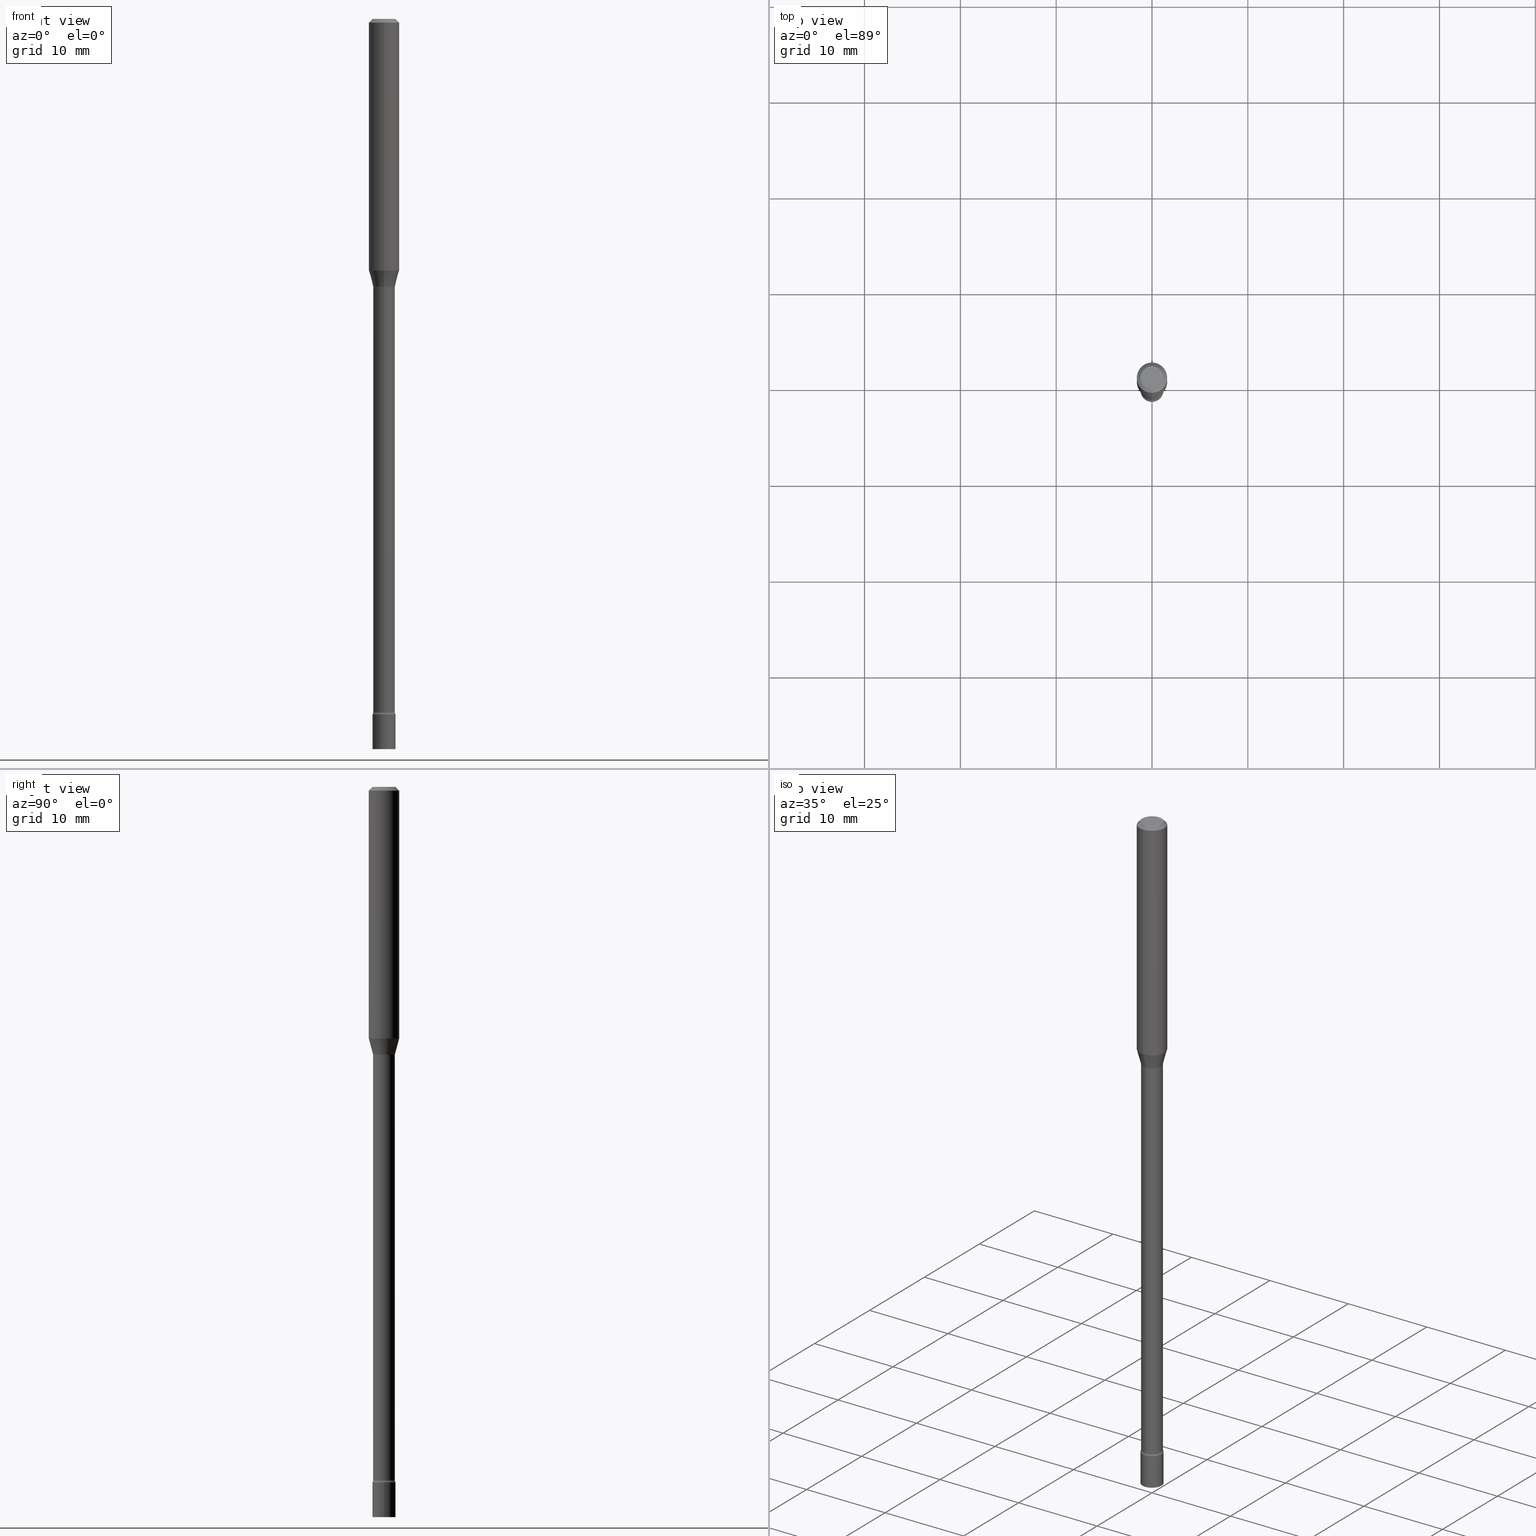
[diagram: canonical four-view strip — front | top / right | iso, engineering-drawing reading convention]
A machine part, canonical four-view strip (front | top / right | iso — engineering-drawing reading convention). The complete STEP part file that produces these views, byte-faithful:
ISO-10303-21;
HEADER;
FILE_DESCRIPTION (( 'STEP AP203' ),
    '1' );
FILE_NAME ('03665.STEP',
    '2024-03-08T22:27:26',
    ( '' ),
    ( '' ),
    'SwSTEP 2.0',
    'SolidWorks 2023',
    '' );
FILE_SCHEMA (( 'CONFIG_CONTROL_DESIGN' ));
ENDSEC;

DATA;
#1 = CYLINDRICAL_SURFACE ( 'NONE', #488, 0.06250000000000000000 ) ;
#2 = CARTESIAN_POINT ( 'NONE',  ( 6.965213475775300482E-29, -9.944420141725807524E-15, -2.848203551853162985 ) ) ;
#3 = LINE ( 'NONE', #37, #436 ) ;
#4 = CARTESIAN_POINT ( 'NONE',  ( 3.824891074290495957E-16, 0.04516111260566016417, -1.098092501787273578 ) ) ;
#5 = ORIENTED_EDGE ( 'NONE', *, *, #519, .T. ) ;
#6 = ORIENTED_EDGE ( 'NONE', *, *, #189, .F. ) ;
#7 = CARTESIAN_POINT ( 'NONE',  ( 4.364351673553919652E-16, 0.06249999999999995143, -0.01500000000000024751 ) ) ;
#8 = DIRECTION ( 'NONE',  ( -2.445476016362466426E-29, 3.491471013458831369E-15, 1.000000000000000000 ) ) ;
#9 = DIRECTION ( 'NONE',  ( -2.445476016362466426E-29, 3.491471013458831369E-15, 1.000000000000000000 ) ) ;
#10 = CARTESIAN_POINT ( 'NONE',  ( 0.000000000000000000, 0.000000000000000000, 0.000000000000000000 ) ) ;
#11 = CIRCLE ( 'NONE', #330, 0.06250000000000000000 ) ;
#12 = AXIS2_PLACEMENT_3D ( 'NONE', #165, #209, #74 ) ;
#13 = CONICAL_SURFACE ( 'NONE', #182, 0.06250000000000000000, 0.7853981633974483900 ) ;
#14 = ORIENTED_EDGE ( 'NONE', *, *, #169, .F. ) ;
#15 = PERSON_AND_ORGANIZATION ( #124, #38 ) ;
#16 = DIRECTION ( 'NONE',  ( -2.445476016362466426E-29, 3.491471013458831369E-15, 1.000000000000000000 ) ) ;
#17 = ADVANCED_FACE ( 'NONE', ( #323 ), #13, .T. ) ;
#18 = ORIENTED_EDGE ( 'NONE', *, *, #199, .T. ) ;
#19 = VECTOR ( 'NONE', #49, 39.37007874015748143 ) ;
#20 = PERSON_AND_ORGANIZATION ( #124, #38 ) ;
#21 = CARTESIAN_POINT ( 'NONE',  ( 3.840629472727447874E-16, 0.04749999999999999362, -1.947592745229184119E-16 ) ) ;
#22 = AXIS2_PLACEMENT_3D ( 'NONE', #224, #221, #446 ) ;
#23 = ORIENTED_EDGE ( 'NONE', *, *, #485, .T. ) ;
#24 = APPROVAL_STATUS ( 'not_yet_approved' ) ;
#25 = ORIENTED_EDGE ( 'NONE', *, *, #189, .T. ) ;
#26 = PERSON_AND_ORGANIZATION ( #124, #38 ) ;
#27 = ORIENTED_EDGE ( 'NONE', *, *, #169, .T. ) ;
#28 = VERTEX_POINT ( 'NONE', #77 ) ;
#29 = CARTESIAN_POINT ( 'NONE',  ( 2.685358876868235963E-29, -3.833958140086755000E-15, -1.098092501787273356 ) ) ;
#30 = DIRECTION ( 'NONE',  ( -2.445476016362466426E-29, 3.491471013458831369E-15, 1.000000000000000000 ) ) ;
#31 = CIRCLE ( 'NONE', #147, 0.04749999999999999362 ) ;
#32 = DIRECTION ( 'NONE',  ( -2.445476016362466426E-29, 3.491471013458831369E-15, 1.000000000000000000 ) ) ;
#33 = ADVANCED_FACE ( 'NONE', ( #296 ), #80, .T. ) ;
#34 = CARTESIAN_POINT ( 'NONE',  ( -3.316907271900276475E-16, -0.04750000000000995787, -2.857000000000000206 ) ) ;
#35 = AXIS2_PLACEMENT_3D ( 'NONE', #438, #445, #84 ) ;
#36 = CARTESIAN_POINT ( 'NONE',  ( -0.04749999999999999362, -9.887295301316104383E-15, -2.857000000000000206 ) ) ;
#37 = CARTESIAN_POINT ( 'NONE',  ( -4.364351673553916201E-16, -0.06250000000000000000, 2.182169383411769606E-16 ) ) ;
#38 = ORGANIZATION ( 'UNSPECIFIED', 'UNSPECIFIED', '' ) ;
#39 = CARTESIAN_POINT ( 'NONE',  ( -3.153583638081115959E-16, -0.04516111260566783164, -1.098092501787273356 ) ) ;
#40 = DIRECTION ( 'NONE',  ( -6.982962677686265922E-15, -1.000000000000000000, 3.491471013458830975E-15 ) ) ;
#41 = AXIS2_PLACEMENT_3D ( 'NONE', #468, #281, #429 ) ;
#42 = ORIENTED_EDGE ( 'NONE', *, *, #177, .F. ) ;
#43 = CARTESIAN_POINT ( 'NONE',  ( 4.238387418809709672E-16, 0.05964999999999028024, -2.848203551853162985 ) ) ;
#44 = CYLINDRICAL_SURFACE ( 'NONE', #100, 0.04465000000000011321 ) ;
#45 = AXIS2_PLACEMENT_3D ( 'NONE', #298, #130, #172 ) ;
#46 = CARTESIAN_POINT ( 'NONE',  ( 2.527113080758372213E-29, -3.608026417010140878E-15, -1.033382893084896059 ) ) ;
#47 = ADVANCED_FACE ( 'NONE', ( #363 ), #44, .T. ) ;
#48 = CIRCLE ( 'NONE', #110, 0.01499999999999998557 ) ;
#49 = DIRECTION ( 'NONE',  ( -2.445468806185136877E-29, 3.491481338843145188E-15, 1.000000000000000000 ) ) ;
#50 = PRODUCT_DEFINITION ( 'UNKNOWN', '', #387, #198 ) ;
#51 = CIRCLE ( 'NONE', #208, 0.01500000000000000291 ) ;
#52 = LINE ( 'NONE', #331, #136 ) ;
#53 = VERTEX_POINT ( 'NONE', #205 ) ;
#54 = AXIS2_PLACEMENT_3D ( 'NONE', #2, #160, #369 ) ;
#55 = ADVANCED_FACE ( 'NONE', ( #367 ), #1, .T. ) ;
#56 = PERSON_AND_ORGANIZATION ( #124, #38 ) ;
#57 = DIRECTION ( 'NONE',  ( -1.807323732225328562E-15, -0.2588190451025179639, 0.9659258262890690894 ) ) ;
#58 = EDGE_LOOP ( 'NONE', ( #214, #140, #309, #42 ) ) ;
#59 = CARTESIAN_POINT ( 'NONE',  ( 2.527113080758372213E-29, -3.608026417010140878E-15, -1.033382893084896059 ) ) ;
#60 = ORIENTED_EDGE ( 'NONE', *, *, #435, .T. ) ;
#61 = CIRCLE ( 'NONE', #139, 0.04749999999999999362 ) ;
#62 =( NAMED_UNIT ( * ) SI_UNIT ( $, .STERADIAN. ) SOLID_ANGLE_UNIT ( ) );
#63 = ADVANCED_FACE ( 'NONE', ( #249 ), #403, .T. ) ;
#64 = DIRECTION ( 'NONE',  ( -2.445468806185136597E-29, 3.491481338843145583E-15, 1.000000000000000000 ) ) ;
#65 = VERTEX_POINT ( 'NONE', #398 ) ;
#66 = CIRCLE ( 'NONE', #475, 0.01499999999999998557 ) ;
#67 = ORIENTED_EDGE ( 'NONE', *, *, #222, .F. ) ;
#68 = UNCERTAINTY_MEASURE_WITH_UNIT (LENGTH_MEASURE( 1.000000000000000082E-05 ), #404, 'distance_accuracy_value', 'NONE');
#69 = VERTEX_POINT ( 'NONE', #478 ) ;
#70 = EDGE_CURVE ( 'NONE', #125, #195, #266, .T. ) ;
#71 = CARTESIAN_POINT ( 'NONE',  ( 4.238387418809266430E-16, 0.05964999999999615748, -1.101974787463811500 ) ) ;
#72 = VERTEX_POINT ( 'NONE', #34 ) ;
#73 = EDGE_CURVE ( 'NONE', #72, #98, #31, .T. ) ;
#74 = DIRECTION ( 'NONE',  ( -6.982962677686265922E-15, -1.000000000000000000, 0.000000000000000000 ) ) ;
#75 = DIRECTION ( 'NONE',  ( -2.445476016362466426E-29, 3.491471013458831369E-15, 1.000000000000000000 ) ) ;
#76 = DIRECTION ( 'NONE',  ( -2.445476016362466426E-29, 3.491471013458831369E-15, 1.000000000000000000 ) ) ;
#77 = CARTESIAN_POINT ( 'NONE',  ( -3.117892835586237394E-16, -0.04465000000001016767, -2.848203551853162985 ) ) ;
#78 = DIRECTION ( 'NONE',  ( -2.445476016362466426E-29, 3.491471013458831369E-15, 1.000000000000000000 ) ) ;
#79 = EDGE_CURVE ( 'NONE', #65, #240, #3, .T. ) ;
#80 = PLANE ( 'NONE',  #416 ) ;
#81 = CC_DESIGN_PERSON_AND_ORGANIZATION_ASSIGNMENT ( #26, #194, ( #472 ) ) ;
#82 = ORIENTED_EDGE ( 'NONE', *, *, #334, .T. ) ;
#83 = DIRECTION ( 'NONE',  ( -2.445476016362466426E-29, 3.491471013458831369E-15, 1.000000000000000000 ) ) ;
#84 = DIRECTION ( 'NONE',  ( -6.982962677686265922E-15, -1.000000000000000000, 3.491471013458831369E-15 ) ) ;
#85 = LENGTH_MEASURE_WITH_UNIT ( LENGTH_MEASURE( 0.02539999999999999897 ), #328 );
#86 = ADVANCED_FACE ( 'NONE', ( #166 ), #220, .F. ) ;
#87 = DIRECTION ( 'NONE',  ( -6.982962677686266711E-15, -1.000000000000000000, 3.024557895105579930E-15 ) ) ;
#88 = LOCAL_TIME ( 17, 27, 26.00000000000000000, #497 ) ;
#89 = CC_DESIGN_SECURITY_CLASSIFICATION ( #472, ( #387 ) ) ;
#90 = DIRECTION ( 'NONE',  ( -2.445468806185136597E-29, 3.491481338843145583E-15, 1.000000000000000000 ) ) ;
#91 = ADVANCED_FACE ( 'NONE', ( #161 ), #439, .F. ) ;
#92 = DIRECTION ( 'NONE',  ( 1.000000000000000000, -6.982962677686261977E-15, 0.000000000000000000 ) ) ;
#93 = ORIENTED_EDGE ( 'NONE', *, *, #499, .F. ) ;
#94 = DIRECTION ( 'NONE',  ( -6.982962677686265922E-15, -1.000000000000000000, 4.370956789862821150E-15 ) ) ;
#95 = ORIENTED_EDGE ( 'NONE', *, *, #135, .F. ) ;
#96 = CC_DESIGN_DATE_AND_TIME_ASSIGNMENT ( #234, #388, ( #50 ) ) ;
#97 = CALENDAR_DATE ( 2024, 8, 3 ) ;
#98 = VERTEX_POINT ( 'NONE', #327 ) ;
#99 = CIRCLE ( 'NONE', #142, 0.04749999999999999362 ) ;
#100 = AXIS2_PLACEMENT_3D ( 'NONE', #395, #30, #40 ) ;
#101 = ORIENTED_EDGE ( 'NONE', *, *, #255, .T. ) ;
#102 = PERSON_AND_ORGANIZATION ( #124, #38 ) ;
#103 = EDGE_LOOP ( 'NONE', ( #356, #25, #14, #95 ) ) ;
#104 = APPROVAL_PERSON_ORGANIZATION ( #191, #476, #381 ) ;
#105 = PERSON_AND_ORGANIZATION ( #124, #38 ) ;
#106 = DIRECTION ( 'NONE',  ( -6.982962677686262766E-15, -1.000000000000000000, 0.000000000000000000 ) ) ;
#107 = CC_DESIGN_PERSON_AND_ORGANIZATION_ASSIGNMENT ( #56, #274, ( #387 ) ) ;
#108 = ORIENTED_EDGE ( 'NONE', *, *, #420, .F. ) ;
#109 = CALENDAR_DATE ( 2024, 8, 3 ) ;
#110 = AXIS2_PLACEMENT_3D ( 'NONE', #71, #358, #514 ) ;
#111 = DIMENSIONAL_EXPONENTS ( 1.000000000000000000, 0.000000000000000000, 0.000000000000000000, 0.000000000000000000, 0.000000000000000000, 0.000000000000000000, 0.000000000000000000 ) ;
#112 = ORIENTED_EDGE ( 'NONE', *, *, #239, .T. ) ;
#113 = CLOSED_SHELL ( 'NONE', ( #86, #47, #91, #17, #63, #459, #325, #55, #149, #354, #515, #332, #245, #465 ) ) ;
#114 = ORIENTED_EDGE ( 'NONE', *, *, #379, .F. ) ;
#115 = EDGE_CURVE ( 'NONE', #250, #240, #428, .T. ) ;
#116 = AXIS2_PLACEMENT_3D ( 'NONE', #507, #454, #267 ) ;
#117 = LINE ( 'NONE', #360, #329 ) ;
#118 = DIRECTION ( 'NONE',  ( -2.445476016362466426E-29, 3.491471013458831369E-15, 1.000000000000000000 ) ) ;
#119 = DIRECTION ( 'NONE',  ( -2.445476016362466426E-29, 3.491471013458831369E-15, 1.000000000000000000 ) ) ;
#120 = ORIENTED_EDGE ( 'NONE', *, *, #239, .F. ) ;
#121 = DIRECTION ( 'NONE',  ( -2.445476016362466426E-29, 3.491471013458831369E-15, 1.000000000000000000 ) ) ;
#122 = ADVANCED_FACE ( 'NONE', ( #310 ), #351, .T. ) ;
#123 = DIRECTION ( 'NONE',  ( -2.445476016362466426E-29, 3.491471013458831369E-15, 1.000000000000000000 ) ) ;
#124 = PERSON ( 'UNSPECIFIED', 'UNSPECIFIED', 'UNSPECIFIED', ('UNSPECIFIED'), ('UNSPECIFIED'), ('UNSPECIFIED') ) ;
#125 = VERTEX_POINT ( 'NONE', #265 ) ;
#126 = CARTESIAN_POINT ( 'NONE',  ( 0.04749999999999999362, -1.080613474371953465E-14, -3.000000000000000444 ) ) ;
#127 = CARTESIAN_POINT ( 'NONE',  ( 2.694844967945245742E-29, -3.847524406305538614E-15, -1.101974787463811278 ) ) ;
#128 = TOROIDAL_SURFACE ( 'NONE', #45, 0.05965000000000000163, 0.01499999999999998036 ) ;
#129 = DIRECTION ( 'NONE',  ( 2.445476016362466426E-29, -3.491471013458831369E-15, -1.000000000000000000 ) ) ;
#130 = DIRECTION ( 'NONE',  ( -2.445476016362466426E-29, 3.491471013458831369E-15, 1.000000000000000000 ) ) ;
#131 = DIRECTION ( 'NONE',  ( 4.937700262164548042E-15, 0.7071067811865451302, -0.7071067811865499042 ) ) ;
#132 = LOCAL_TIME ( 17, 27, 26.00000000000000000, #137 ) ;
#133 = DIRECTION ( 'NONE',  ( -2.445476016362466426E-29, 3.491471013458831369E-15, 1.000000000000000000 ) ) ;
#134 = CARTESIAN_POINT ( 'NONE',  ( 2.685358876868235963E-29, -3.833958140086755000E-15, -1.098092501787273356 ) ) ;
#135 = EDGE_CURVE ( 'NONE', #291, #65, #279, .T. ) ;
#136 = VECTOR ( 'NONE', #9, 39.37007874015748143 ) ;
#137 = COORDINATED_UNIVERSAL_TIME_OFFSET ( 5, 0, .BEHIND. ) ;
#138 = ORIENTED_EDGE ( 'NONE', *, *, #115, .F. ) ;
#139 = AXIS2_PLACEMENT_3D ( 'NONE', #380, #168, #92 ) ;
#140 = ORIENTED_EDGE ( 'NONE', *, *, #364, .T. ) ;
#141 = EDGE_CURVE ( 'NONE', #513, #324, #448, .T. ) ;
#142 = AXIS2_PLACEMENT_3D ( 'NONE', #437, #520, #517 ) ;
#143 = AXIS2_PLACEMENT_3D ( 'NONE', #29, #83, #241 ) ;
#144 = APPROVAL_ROLE ( '' ) ;
#145 = CIRCLE ( 'NONE', #434, 0.04749999999999999362 ) ;
#146 = FACE_OUTER_BOUND ( 'NONE', #226, .T. ) ;
#147 = AXIS2_PLACEMENT_3D ( 'NONE', #207, #432, #318 ) ;
#148 = EDGE_LOOP ( 'NONE', ( #455, #311, #386, #235 ) ) ;
#149 = ADVANCED_FACE ( 'NONE', ( #146 ), #336, .T. ) ;
#150 = CALENDAR_DATE ( 2024, 8, 3 ) ;
#151 = VERTEX_POINT ( 'NONE', #21 ) ;
#152 = AXIS2_PLACEMENT_3D ( 'NONE', #376, #133, #175 ) ;
#153 = DATE_AND_TIME ( #97, #259 ) ;
#154 = EDGE_LOOP ( 'NONE', ( #423, #5, #23, #193 ) ) ;
#155 = VECTOR ( 'NONE', #32, 39.37007874015748143 ) ;
#156 = CC_DESIGN_DATE_AND_TIME_ASSIGNMENT ( #350, #312, ( #472 ) ) ;
#157 = ORIENTED_EDGE ( 'NONE', *, *, #223, .T. ) ;
#158 = CARTESIAN_POINT ( 'NONE',  ( 2.685358876868235963E-29, -3.833958140086755000E-15, -1.098092501787273356 ) ) ;
#159 = DIRECTION ( 'NONE',  ( -6.982962677686265922E-15, -1.000000000000000000, 3.059180284058524971E-15 ) ) ;
#160 = DIRECTION ( 'NONE',  ( -2.445476016362466426E-29, 3.491471013458831369E-15, 1.000000000000000000 ) ) ;
#161 = FACE_OUTER_BOUND ( 'NONE', #415, .T. ) ;
#162 = FACE_OUTER_BOUND ( 'NONE', #277, .T. ) ;
#163 = CARTESIAN_POINT ( 'NONE',  ( 2.694852913378876886E-29, -3.847513027992353259E-15, -1.101974787463811278 ) ) ;
#164 = ORIENTED_EDGE ( 'NONE', *, *, #197, .T. ) ;
#165 = CARTESIAN_POINT ( 'NONE',  ( 6.965213475775300482E-29, -9.944420141725807524E-15, -2.848203551853162985 ) ) ;
#166 = FACE_OUTER_BOUND ( 'NONE', #58, .T. ) ;
#167 = ORIENTED_EDGE ( 'NONE', *, *, #222, .T. ) ;
#168 = DIRECTION ( 'NONE',  ( -2.445468806185136597E-29, 3.491481338843145583E-15, 1.000000000000000000 ) ) ;
#169 = EDGE_CURVE ( 'NONE', #65, #410, #482, .T. ) ;
#170 = DIRECTION ( 'NONE',  ( -2.445476016362466426E-29, 3.491471013458831369E-15, 1.000000000000000000 ) ) ;
#171 = ORIENTED_EDGE ( 'NONE', *, *, #79, .F. ) ;
#172 = DIRECTION ( 'NONE',  ( -6.982962677686265922E-15, -1.000000000000000000, 3.491471013458831369E-15 ) ) ;
#173 = FACE_OUTER_BOUND ( 'NONE', #306, .T. ) ;
#174 = ADVANCED_BREP_SHAPE_REPRESENTATION ( '03665', ( #447, #287, #116 ), #247 ) ;
#175 = DIRECTION ( 'NONE',  ( -6.982962677686265922E-15, -1.000000000000000000, 3.059180284058524971E-15 ) ) ;
#176 = VECTOR ( 'NONE', #131, 39.37007874015748143 ) ;
#177 = EDGE_CURVE ( 'NONE', #291, #195, #66, .T. ) ;
#178 = APPROVAL ( #464, 'UNSPECIFIED' ) ;
#179 = DIRECTION ( 'NONE',  ( -1.000000000000000000, 6.982962677686265922E-15, -4.883557194083112340E-29 ) ) ;
#180 = AXIS2_PLACEMENT_3D ( 'NONE', #290, #78, #402 ) ;
#181 = PERSON_AND_ORGANIZATION_ROLE ( 'creator' ) ;
#182 = AXIS2_PLACEMENT_3D ( 'NONE', #359, #129, #361 ) ;
#183 = SHAPE_DEFINITION_REPRESENTATION ( #269, #174 ) ;
#184 = CARTESIAN_POINT ( 'NONE',  ( -4.165337237239588693E-16, -0.05965000000000385272, -1.101974787463810834 ) ) ;
#185 = ORIENTED_EDGE ( 'NONE', *, *, #375, .F. ) ;
#186 = PERSON_AND_ORGANIZATION_ROLE ( 'design_owner' ) ;
#187 = CARTESIAN_POINT ( 'NONE',  ( 3.208890050080112331E-16, 0.04516111260566016417, -1.098092501787273578 ) ) ;
#188 = ORIENTED_EDGE ( 'NONE', *, *, #373, .T. ) ;
#189 = EDGE_CURVE ( 'NONE', #345, #410, #385, .T. ) ;
#190 = AXIS2_PLACEMENT_3D ( 'NONE', #477, #121, #479 ) ;
#191 = PERSON_AND_ORGANIZATION ( #124, #38 ) ;
#192 = DIRECTION ( 'NONE',  ( -6.982962677686265922E-15, -1.000000000000000000, 4.370956789862821150E-15 ) ) ;
#193 = ORIENTED_EDGE ( 'NONE', *, *, #197, .F. ) ;
#194 = PERSON_AND_ORGANIZATION_ROLE ( 'classification_officer' ) ;
#195 = VERTEX_POINT ( 'NONE', #271 ) ;
#196 = AXIS2_PLACEMENT_3D ( 'NONE', #216, #118, #286 ) ;
#197 = EDGE_CURVE ( 'NONE', #324, #513, #145, .T. ) ;
#198 = DESIGN_CONTEXT ( 'detailed design', #412, 'design' ) ;
#199 = EDGE_CURVE ( 'NONE', #53, #98, #502, .T. ) ;
#200 = CARTESIAN_POINT ( 'NONE',  ( 3.316907271901709243E-16, 0.04749999999998952283, -3.000000000000000444 ) ) ;
#201 = ORIENTED_EDGE ( 'NONE', *, *, #334, .F. ) ;
#202 = AXIS2_PLACEMENT_3D ( 'NONE', #414, #308, #229 ) ;
#203 = CONICAL_SURFACE ( 'NONE', #143, 0.04516111260566399443, 0.2617993877991500740 ) ;
#204 = CARTESIAN_POINT ( 'NONE',  ( 0.000000000000000000, 0.000000000000000000, 0.000000000000000000 ) ) ;
#205 = CARTESIAN_POINT ( 'NONE',  ( 3.273825655015366502E-16, 0.04464999999999028080, -2.848203551853162985 ) ) ;
#206 = LINE ( 'NONE', #320, #155 ) ;
#207 = CARTESIAN_POINT ( 'NONE',  ( 6.986724978747568131E-29, -9.975132685451881960E-15, -2.857000000000000206 ) ) ;
#208 = AXIS2_PLACEMENT_3D ( 'NONE', #257, #179, #377 ) ;
#209 = DIRECTION ( 'NONE',  ( -2.445476016362466426E-29, 3.491471013458831369E-15, 1.000000000000000000 ) ) ;
#210 = DIRECTION ( 'NONE',  ( -2.438088387897960049E-29, 3.491481338843145188E-15, 1.000000000000000000 ) ) ;
#211 = CIRCLE ( 'NONE', #180, 0.04749999999999999362 ) ;
#212 = CYLINDRICAL_SURFACE ( 'NONE', #433, 0.04749999999999999362 ) ;
#213 = CARTESIAN_POINT ( 'NONE',  ( 0.000000000000000000, 0.000000000000000000, 0.000000000000000000 ) ) ;
#214 = ORIENTED_EDGE ( 'NONE', *, *, #456, .F. ) ;
#215 = FACE_OUTER_BOUND ( 'NONE', #148, .T. ) ;
#216 = CARTESIAN_POINT ( 'NONE',  ( 3.668214024543707189E-31, -5.237206520188257629E-17, -0.01500000000000003067 ) ) ;
#217 = ORIENTED_EDGE ( 'NONE', *, *, #456, .T. ) ;
#218 = CIRCLE ( 'NONE', #22, 0.06250000000000000000 ) ;
#219 = CARTESIAN_POINT ( 'NONE',  ( 4.440892098500877611E-16, 0.06249999999999638484, -1.033382893084896281 ) ) ;
#220 = TOROIDAL_SURFACE ( 'NONE', #504, 0.05965000000000000163, 0.01499999999999998036 ) ;
#221 = DIRECTION ( 'NONE',  ( -2.445476016362466426E-29, 3.491471013458831369E-15, 1.000000000000000000 ) ) ;
#222 = EDGE_CURVE ( 'NONE', #28, #53, #254, .T. ) ;
#223 = EDGE_CURVE ( 'NONE', #28, #195, #206, .T. ) ;
#224 = CARTESIAN_POINT ( 'NONE',  ( 3.668214024543707189E-31, -5.237206520188257629E-17, -0.01500000000000003067 ) ) ;
#225 = PLANE ( 'NONE',  #321 ) ;
#226 = EDGE_LOOP ( 'NONE', ( #352, #120, #60, #313 ) ) ;
#227 = EDGE_CURVE ( 'NONE', #69, #240, #117, .T. ) ;
#228 = COORDINATED_UNIVERSAL_TIME_OFFSET ( 5, 0, .BEHIND. ) ;
#229 = DIRECTION ( 'NONE',  ( 6.982962677686265922E-15, 1.000000000000000000, -3.483106191921935554E-15 ) ) ;
#230 = ORIENTED_EDGE ( 'NONE', *, *, #338, .T. ) ;
#231 = MECHANICAL_CONTEXT ( 'NONE', #299, 'mechanical' ) ;
#232 = DIRECTION ( 'NONE',  ( -1.000000000000000000, 6.982962677686265922E-15, -4.883557194083112340E-29 ) ) ;
#233 = ORIENTED_EDGE ( 'NONE', *, *, #365, .F. ) ;
#234 = DATE_AND_TIME ( #343, #132 ) ;
#235 = ORIENTED_EDGE ( 'NONE', *, *, #485, .F. ) ;
#236 = AXIS2_PLACEMENT_3D ( 'NONE', #59, #16, #192 ) ;
#237 = COORDINATED_UNIVERSAL_TIME_OFFSET ( 5, 0, .BEHIND. ) ;
#238 = EDGE_LOOP ( 'NONE', ( #112, #230 ) ) ;
#239 = EDGE_CURVE ( 'NONE', #151, #69, #511, .T. ) ;
#240 = VERTEX_POINT ( 'NONE', #242 ) ;
#241 = DIRECTION ( 'NONE',  ( -6.982962677686266711E-15, -1.000000000000000000, 3.024557895105579930E-15 ) ) ;
#242 = CARTESIAN_POINT ( 'NONE',  ( -4.364351673553912750E-16, -0.06250000000000005551, -0.01499999999999981209 ) ) ;
#243 = DIRECTION ( 'NONE',  ( 1.000000000000000000, -6.982962677686265922E-15, 4.876176775795935793E-29 ) ) ;
#244 = LINE ( 'NONE', #440, #450 ) ;
#245 = ADVANCED_FACE ( 'NONE', ( #252 ), #470, .T. ) ;
#246 = CARTESIAN_POINT ( 'NONE',  ( 0.000000000000000000, 0.000000000000000000, 0.000000000000000000 ) ) ;
#247 =( GEOMETRIC_REPRESENTATION_CONTEXT ( 3 ) GLOBAL_UNCERTAINTY_ASSIGNED_CONTEXT ( ( #68 ) ) GLOBAL_UNIT_ASSIGNED_CONTEXT ( ( #404, #457, #62 ) ) REPRESENTATION_CONTEXT ( 'NONE', 'WORKASPACE' ) );
#248 = DIRECTION ( 'NONE',  ( 1.000000000000000000, -6.982962677686261977E-15, 0.000000000000000000 ) ) ;
#249 = FACE_OUTER_BOUND ( 'NONE', #392, .T. ) ;
#250 = VERTEX_POINT ( 'NONE', #362 ) ;
#251 = AXIS2_PLACEMENT_3D ( 'NONE', #158, #317, #431 ) ;
#252 = FACE_OUTER_BOUND ( 'NONE', #348, .T. ) ;
#253 = DIRECTION ( 'NONE',  ( -2.445476016362466426E-29, 3.491471013458831369E-15, 1.000000000000000000 ) ) ;
#254 = CIRCLE ( 'NONE', #12, 0.04465000000000022423 ) ;
#255 = EDGE_CURVE ( 'NONE', #410, #250, #244, .T. ) ;
#256 = LINE ( 'NONE', #487, #489 ) ;
#257 = CARTESIAN_POINT ( 'NONE',  ( -4.165337237239177006E-16, -0.05965000000001017405, -2.848203551853162985 ) ) ;
#258 = APPROVAL_PERSON_ORGANIZATION ( #15, #178, #144 ) ;
#259 = LOCAL_TIME ( 17, 27, 26.00000000000000000, #418 ) ;
#260 = DIRECTION ( 'NONE',  ( -2.445468806185136877E-29, 3.491481338843145188E-15, 1.000000000000000000 ) ) ;
#261 = LINE ( 'NONE', #7, #176 ) ;
#262 = CC_DESIGN_PERSON_AND_ORGANIZATION_ASSIGNMENT ( #105, #181, ( #387 ) ) ;
#263 = CARTESIAN_POINT ( 'NONE',  ( 0.04749999999999999362, -1.030685291226496570E-14, -2.857000000000000206 ) ) ;
#264 = APPROVAL_DATE_TIME ( #153, #393 ) ;
#265 = CARTESIAN_POINT ( 'NONE',  ( 3.172573315169550558E-16, 0.04464999999999615804, -1.101974787463811278 ) ) ;
#266 = CIRCLE ( 'NONE', #346, 0.04465000000000000913 ) ;
#267 = DIRECTION ( 'NONE',  ( 1.000000000000000000, 0.000000000000000000, 0.000000000000000000 ) ) ;
#268 = EDGE_LOOP ( 'NONE', ( #382, #164 ) ) ;
#269 = PRODUCT_DEFINITION_SHAPE ( 'NONE', 'NONE',  #50 ) ;
#270 = APPROVAL_ROLE ( '' ) ;
#271 = CARTESIAN_POINT ( 'NONE',  ( -3.117892835586649081E-16, -0.04465000000000386021, -1.101974787463811056 ) ) ;
#272 = ORIENTED_EDGE ( 'NONE', *, *, #338, .F. ) ;
#273 = CIRCLE ( 'NONE', #509, 0.04516111260566399443 ) ;
#274 = PERSON_AND_ORGANIZATION_ROLE ( 'design_supplier' ) ;
#275 = EDGE_CURVE ( 'NONE', #342, #391, #99, .T. ) ;
#276 = DIRECTION ( 'NONE',  ( 1.839019923739598738E-15, 0.2588190451025247363, 0.9659258262890673130 ) ) ;
#277 = EDGE_LOOP ( 'NONE', ( #6, #217, #458, #185 ) ) ;
#278 = DATE_AND_TIME ( #109, #88 ) ;
#279 = LINE ( 'NONE', #508, #471 ) ;
#280 = EDGE_LOOP ( 'NONE', ( #272, #469, #282, #484 ) ) ;
#281 = DIRECTION ( 'NONE',  ( 2.445476016362466146E-29, -3.491471013458831369E-15, -1.000000000000000000 ) ) ;
#282 = ORIENTED_EDGE ( 'NONE', *, *, #491, .T. ) ;
#283 = AXIS2_PLACEMENT_3D ( 'NONE', #10, #90, #449 ) ;
#284 = CC_DESIGN_APPROVAL ( #178, ( #472 ) ) ;
#285 = CARTESIAN_POINT ( 'NONE',  ( 0.000000000000000000, 0.000000000000000000, 0.000000000000000000 ) ) ;
#286 = DIRECTION ( 'NONE',  ( -6.982962677686265922E-15, -1.000000000000000000, 3.483106191921935554E-15 ) ) ;
#287 = MANIFOLD_SOLID_BREP ( 'Body-Move/Copy2[2]', #113 ) ;
#288 = DIRECTION ( 'NONE',  ( -4.851104656540964275E-15, -0.7071067811865500152, -0.7071067811865450192 ) ) ;
#289 = CARTESIAN_POINT ( 'NONE',  ( 6.986704379270935831E-29, -9.975162185074867400E-15, -2.857000000000000206 ) ) ;
#290 = CARTESIAN_POINT ( 'NONE',  ( 7.070947511113005210E-46, -1.009537943024368866E-31, -2.891440138362392901E-17 ) ) ;
#291 = VERTEX_POINT ( 'NONE', #39 ) ;
#292 = CONICAL_SURFACE ( 'NONE', #353, 0.04516111260566399443, 0.2617993877991500740 ) ;
#293 = DIRECTION ( 'NONE',  ( 1.000000000000000000, -7.105427357601001070E-15, 4.926315382092593763E-29 ) ) ;
#294 = DIRECTION ( 'NONE',  ( -6.982962677686265922E-15, -1.000000000000000000, 3.491471013458831369E-15 ) ) ;
#295 = VECTOR ( 'NONE', #276, 39.37007874015748854 ) ;
#296 = FACE_OUTER_BOUND ( 'NONE', #268, .T. ) ;
#297 = DIRECTION ( 'NONE',  ( -6.982962677686266711E-15, -1.000000000000000000, 3.024557895105579930E-15 ) ) ;
#298 = CARTESIAN_POINT ( 'NONE',  ( 2.694844967945245742E-29, -3.847524406305538614E-15, -1.101974787463811278 ) ) ;
#299 = APPLICATION_CONTEXT ( 'configuration controlled 3d designs of mechanical parts and assemblies' ) ;
#300 = CARTESIAN_POINT ( 'NONE',  ( 3.316907271901674731E-16, 0.04749999999999002243, -2.857000000000000206 ) ) ;
#301 = ADVANCED_FACE ( 'NONE', ( #215 ), #212, .T. ) ;
#302 = CARTESIAN_POINT ( 'NONE',  ( 0.04749999999999999362, -3.316907271900976589E-16, 2.316183968503069081E-30 ) ) ;
#303 = EDGE_LOOP ( 'NONE', ( #167, #452, #93, #481 ) ) ;
#304 = PRODUCT_RELATED_PRODUCT_CATEGORY ( 'detail', '', ( #344 ) ) ;
#305 = AXIS2_PLACEMENT_3D ( 'NONE', #366, #76, #399 ) ;
#306 = EDGE_LOOP ( 'NONE', ( #498, #233, #316, #463 ) ) ;
#307 = AXIS2_PLACEMENT_3D ( 'NONE', #213, #123, #518 ) ;
#308 = DIRECTION ( 'NONE',  ( 2.445476016362466426E-29, -3.491471013458831369E-15, -1.000000000000000000 ) ) ;
#309 = ORIENTED_EDGE ( 'NONE', *, *, #70, .T. ) ;
#310 = FACE_OUTER_BOUND ( 'NONE', #467, .T. ) ;
#311 = ORIENTED_EDGE ( 'NONE', *, *, #409, .T. ) ;
#312 = DATE_TIME_ROLE ( 'classification_date' ) ;
#313 = ORIENTED_EDGE ( 'NONE', *, *, #115, .T. ) ;
#314 = CIRCLE ( 'NONE', #54, 0.04465000000000022423 ) ;
#315 = PLANE ( 'NONE',  #41 ) ;
#316 = ORIENTED_EDGE ( 'NONE', *, *, #177, .T. ) ;
#317 = DIRECTION ( 'NONE',  ( -2.445476016362466426E-29, 3.491471013458831369E-15, 1.000000000000000000 ) ) ;
#318 = DIRECTION ( 'NONE',  ( -6.982962677686266711E-15, -1.000000000000000000, 0.000000000000000000 ) ) ;
#319 = LOCAL_TIME ( 17, 27, 26.00000000000000000, #237 ) ;
#320 = CARTESIAN_POINT ( 'NONE',  ( -3.117892835586925675E-16, -0.04465000000000011321, 1.558941807509371979E-16 ) ) ;
#321 = AXIS2_PLACEMENT_3D ( 'NONE', #300, #494, #451 ) ;
#322 = FACE_OUTER_BOUND ( 'NONE', #430, .T. ) ;
#323 = FACE_OUTER_BOUND ( 'NONE', #280, .T. ) ;
#324 = VERTEX_POINT ( 'NONE', #36 ) ;
#325 = ADVANCED_FACE ( 'NONE', ( #162 ), #203, .T. ) ;
#326 = DIRECTION ( 'NONE',  ( -2.445476016362466426E-29, 3.491471013458831369E-15, 1.000000000000000000 ) ) ;
#327 = CARTESIAN_POINT ( 'NONE',  ( 3.375077994861173078E-16, 0.04749999999999001549, -2.857000000000000206 ) ) ;
#328 =( LENGTH_UNIT ( ) NAMED_UNIT ( * ) SI_UNIT ( $, .METRE. ) );
#329 = VECTOR ( 'NONE', #288, 39.37007874015748143 ) ;
#330 = AXIS2_PLACEMENT_3D ( 'NONE', #46, #8, #94 ) ;
#331 = CARTESIAN_POINT ( 'NONE',  ( 3.172573315168854881E-16, 0.04465000000000011321, -1.558941807509371979E-16 ) ) ;
#332 = ADVANCED_FACE ( 'NONE', ( #322 ), #512, .F. ) ;
#333 = DIRECTION ( 'NONE',  ( -2.445476016362466426E-29, 3.491471013458831369E-15, 1.000000000000000000 ) ) ;
#334 = EDGE_CURVE ( 'NONE', #53, #28, #314, .T. ) ;
#335 = CARTESIAN_POINT ( 'NONE',  ( -0.04749999999999999362, -9.887295301316104383E-15, -3.000000000000000444 ) ) ;
#336 = CONICAL_SURFACE ( 'NONE', #202, 0.06250000000000000000, 0.7853981633974483900 ) ;
#337 = FACE_OUTER_BOUND ( 'NONE', #154, .T. ) ;
#338 = EDGE_CURVE ( 'NONE', #69, #151, #211, .T. ) ;
#339 = PERSON_AND_ORGANIZATION_ROLE ( 'creator' ) ;
#340 = AXIS2_PLACEMENT_3D ( 'NONE', #200, #460, #501 ) ;
#341 = CIRCLE ( 'NONE', #152, 0.04465000000000000913 ) ;
#342 = VERTEX_POINT ( 'NONE', #126 ) ;
#343 = CALENDAR_DATE ( 2024, 8, 3 ) ;
#344 = PRODUCT ( '03665', '03665', '', ( #231 ) ) ;
#345 = VERTEX_POINT ( 'NONE', #4 ) ;
#346 = AXIS2_PLACEMENT_3D ( 'NONE', #163, #253, #159 ) ;
#347 = APPROVAL_STATUS ( 'not_yet_approved' ) ;
#348 = EDGE_LOOP ( 'NONE', ( #114, #82, #157, #427 ) ) ;
#349 = CC_DESIGN_PERSON_AND_ORGANIZATION_ASSIGNMENT ( #20, #339, ( #50 ) ) ;
#350 = DATE_AND_TIME ( #500, #493 ) ;
#351 = PLANE ( 'NONE',  #340 ) ;
#352 = ORIENTED_EDGE ( 'NONE', *, *, #227, .F. ) ;
#353 = AXIS2_PLACEMENT_3D ( 'NONE', #134, #333, #297 ) ;
#354 = ADVANCED_FACE ( 'NONE', ( #394 ), #315, .F. ) ;
#355 = DIRECTION ( 'NONE',  ( 1.000000000000000000, -6.982962677686261977E-15, 0.000000000000000000 ) ) ;
#356 = ORIENTED_EDGE ( 'NONE', *, *, #365, .T. ) ;
#357 = AXIS2_PLACEMENT_3D ( 'NONE', #406, #453, #483 ) ;
#358 = DIRECTION ( 'NONE',  ( 1.000000000000000000, -7.105427357601001070E-15, 4.926315382092593763E-29 ) ) ;
#359 = CARTESIAN_POINT ( 'NONE',  ( 3.668214024543707189E-31, -5.237206520188257629E-17, -0.01500000000000003067 ) ) ;
#360 = CARTESIAN_POINT ( 'NONE',  ( -4.287811248607203282E-16, -0.06250000000000005551, -0.01499999999999981209 ) ) ;
#361 = DIRECTION ( 'NONE',  ( 6.982962677686265922E-15, 1.000000000000000000, -3.483106191921935554E-15 ) ) ;
#362 = CARTESIAN_POINT ( 'NONE',  ( 4.440892098500879583E-16, 0.06249999999999995143, -0.01500000000000024751 ) ) ;
#363 = FACE_OUTER_BOUND ( 'NONE', #303, .T. ) ;
#364 = EDGE_CURVE ( 'NONE', #345, #125, #48, .T. ) ;
#365 = EDGE_CURVE ( 'NONE', #291, #345, #466, .T. ) ;
#366 = CARTESIAN_POINT ( 'NONE',  ( 7.070947511113005210E-46, -1.009537943024368866E-31, -2.891440138362392901E-17 ) ) ;
#367 = FACE_OUTER_BOUND ( 'NONE', #368, .T. ) ;
#368 = EDGE_LOOP ( 'NONE', ( #389, #503, #417, #138 ) ) ;
#369 = DIRECTION ( 'NONE',  ( -6.982962677686265922E-15, -1.000000000000000000, 0.000000000000000000 ) ) ;
#370 = EDGE_LOOP ( 'NONE', ( #506, #378 ) ) ;
#371 = APPROVAL_PERSON_ORGANIZATION ( #496, #393, #270 ) ;
#372 = CARTESIAN_POINT ( 'NONE',  ( 2.685358876868235963E-29, -3.833958140086755000E-15, -1.098092501787273356 ) ) ;
#373 = EDGE_CURVE ( 'NONE', #98, #72, #486, .T. ) ;
#374 = DIRECTION ( 'NONE',  ( -2.445476016362466426E-29, 3.491471013458831369E-15, 1.000000000000000000 ) ) ;
#375 = EDGE_CURVE ( 'NONE', #410, #65, #11, .T. ) ;
#376 = CARTESIAN_POINT ( 'NONE',  ( 2.694852913378876886E-29, -3.847513027992353259E-15, -1.101974787463811278 ) ) ;
#377 = DIRECTION ( 'NONE',  ( -6.982962677686266711E-15, -1.000000000000000000, 0.000000000000000000 ) ) ;
#378 = ORIENTED_EDGE ( 'NONE', *, *, #373, .F. ) ;
#379 = EDGE_CURVE ( 'NONE', #53, #125, #52, .T. ) ;
#380 = CARTESIAN_POINT ( 'NONE',  ( 7.336406418555409790E-29, -1.047444401652943635E-14, -3.000000000000000444 ) ) ;
#381 = APPROVAL_ROLE ( '' ) ;
#382 = ORIENTED_EDGE ( 'NONE', *, *, #141, .T. ) ;
#383 = APPLICATION_PROTOCOL_DEFINITION ( 'international standard', 'config_control_design', 1994, #412 ) ;
#384 = ADVANCED_FACE ( 'NONE', ( #337 ), #407, .T. ) ;
#385 = LINE ( 'NONE', #187, #295 ) ;
#386 = ORIENTED_EDGE ( 'NONE', *, *, #141, .F. ) ;
#387 = PRODUCT_DEFINITION_FORMATION_WITH_SPECIFIED_SOURCE ( 'ANY', '', #344, .NOT_KNOWN. ) ;
#388 = DATE_TIME_ROLE ( 'creation_date' ) ;
#389 = ORIENTED_EDGE ( 'NONE', *, *, #255, .F. ) ;
#390 = APPLICATION_PROTOCOL_DEFINITION ( 'international standard', 'config_control_design', 1994, #299 ) ;
#391 = VERTEX_POINT ( 'NONE', #335 ) ;
#392 = EDGE_LOOP ( 'NONE', ( #27, #101, #474, #171 ) ) ;
#393 = APPROVAL ( #24, 'UNSPECIFIED' ) ;
#394 = FACE_OUTER_BOUND ( 'NONE', #238, .T. ) ;
#395 = CARTESIAN_POINT ( 'NONE',  ( 0.000000000000000000, 0.000000000000000000, 0.000000000000000000 ) ) ;
#396 = AXIS2_PLACEMENT_3D ( 'NONE', #204, #326, #401 ) ;
#397 = DIRECTION ( 'NONE',  ( -2.445468806185136597E-29, 3.491481338843145583E-15, 1.000000000000000000 ) ) ;
#398 = CARTESIAN_POINT ( 'NONE',  ( -4.364351673553663766E-16, -0.06250000000000360822, -1.033382893084895837 ) ) ;
#399 = DIRECTION ( 'NONE',  ( -6.982962677686266711E-15, -1.000000000000000000, 3.491471013458831369E-15 ) ) ;
#400 = DIRECTION ( 'NONE',  ( -6.982962677686265922E-15, -1.000000000000000000, 3.491471013458831369E-15 ) ) ;
#401 = DIRECTION ( 'NONE',  ( -6.982962677686265922E-15, -1.000000000000000000, 3.491471013458830975E-15 ) ) ;
#402 = DIRECTION ( 'NONE',  ( -6.982962677686266711E-15, -1.000000000000000000, 3.491471013458831369E-15 ) ) ;
#403 = CYLINDRICAL_SURFACE ( 'NONE', #307, 0.06250000000000000000 ) ;
#404 =( CONVERSION_BASED_UNIT ( 'INCH', #85 ) LENGTH_UNIT ( ) NAMED_UNIT ( #111 ) );
#405 = CC_DESIGN_APPROVAL ( #393, ( #50 ) ) ;
#406 = CARTESIAN_POINT ( 'NONE',  ( 6.986724978747568131E-29, -9.975132685451881960E-15, -2.857000000000000206 ) ) ;
#407 = CYLINDRICAL_SURFACE ( 'NONE', #283, 0.04749999999999999362 ) ;
#408 = FACE_OUTER_BOUND ( 'NONE', #103, .T. ) ;
#409 = EDGE_CURVE ( 'NONE', #391, #324, #256, .T. ) ;
#410 = VERTEX_POINT ( 'NONE', #219 ) ;
#411 = FACE_OUTER_BOUND ( 'NONE', #370, .T. ) ;
#412 = APPLICATION_CONTEXT ( 'configuration controlled 3d designs of mechanical parts and assemblies' ) ;
#413 = DATE_AND_TIME ( #150, #319 ) ;
#414 = CARTESIAN_POINT ( 'NONE',  ( 3.668214024543707189E-31, -5.237206520188257629E-17, -0.01500000000000003067 ) ) ;
#415 = EDGE_LOOP ( 'NONE', ( #201, #18, #188, #108 ) ) ;
#416 = AXIS2_PLACEMENT_3D ( 'NONE', #289, #210, #243 ) ;
#417 = ORIENTED_EDGE ( 'NONE', *, *, #79, .T. ) ;
#418 = COORDINATED_UNIVERSAL_TIME_OFFSET ( 5, 0, .BEHIND. ) ;
#419 = CARTESIAN_POINT ( 'NONE',  ( 6.986704379270935831E-29, -9.975162185074867400E-15, -2.857000000000000206 ) ) ;
#420 = EDGE_CURVE ( 'NONE', #28, #72, #51, .T. ) ;
#421 = ORIENTED_EDGE ( 'NONE', *, *, #275, .F. ) ;
#422 = SECURITY_CLASSIFICATION_LEVEL ( 'unclassified' ) ;
#423 = ORIENTED_EDGE ( 'NONE', *, *, #409, .F. ) ;
#424 = CLOSED_SHELL ( 'NONE', ( #301, #33, #384, #122 ) ) ;
#425 = APPROVAL_DATE_TIME ( #278, #178 ) ;
#426 = DIRECTION ( 'NONE',  ( -2.445468806185136597E-29, 3.491481338843145583E-15, 1.000000000000000000 ) ) ;
#427 = ORIENTED_EDGE ( 'NONE', *, *, #70, .F. ) ;
#428 = CIRCLE ( 'NONE', #196, 0.06250000000000000000 ) ;
#429 = DIRECTION ( 'NONE',  ( 6.982962677686265922E-15, 1.000000000000000000, -3.491471013458831369E-15 ) ) ;
#430 = EDGE_LOOP ( 'NONE', ( #443, #67, #461, #480 ) ) ;
#431 = DIRECTION ( 'NONE',  ( -6.982962677686266711E-15, -1.000000000000000000, 3.024557895105579930E-15 ) ) ;
#432 = DIRECTION ( 'NONE',  ( -2.445476016362466426E-29, 3.491471013458831369E-15, 1.000000000000000000 ) ) ;
#433 = AXIS2_PLACEMENT_3D ( 'NONE', #285, #397, #444 ) ;
#434 = AXIS2_PLACEMENT_3D ( 'NONE', #419, #64, #248 ) ;
#435 = EDGE_CURVE ( 'NONE', #151, #250, #261, .T. ) ;
#436 = VECTOR ( 'NONE', #170, 39.37007874015748143 ) ;
#437 = CARTESIAN_POINT ( 'NONE',  ( 7.336406418555409790E-29, -1.047444401652943635E-14, -3.000000000000000444 ) ) ;
#438 = CARTESIAN_POINT ( 'NONE',  ( 6.965192939722619373E-29, -9.944449550522084107E-15, -2.848203551853162985 ) ) ;
#439 = TOROIDAL_SURFACE ( 'NONE', #35, 0.05965000000000022368, 0.01500000000000000291 ) ;
#440 = CARTESIAN_POINT ( 'NONE',  ( 4.440892098500625669E-16, 0.06250000000000000000, -2.182169383411769606E-16 ) ) ;
#441 = CC_DESIGN_PERSON_AND_ORGANIZATION_ASSIGNMENT ( #102, #186, ( #344 ) ) ;
#442 = CC_DESIGN_APPROVAL ( #476, ( #387 ) ) ;
#443 = ORIENTED_EDGE ( 'NONE', *, *, #199, .F. ) ;
#444 = DIRECTION ( 'NONE',  ( 1.000000000000000000, -6.982962677686267499E-15, 4.876176775795935793E-29 ) ) ;
#445 = DIRECTION ( 'NONE',  ( -2.445476016362466426E-29, 3.491471013458831369E-15, 1.000000000000000000 ) ) ;
#446 = DIRECTION ( 'NONE',  ( -6.982962677686265922E-15, -1.000000000000000000, 3.483106191921935554E-15 ) ) ;
#447 = MANIFOLD_SOLID_BREP ( 'Body-Move/Copy2[1]', #424 ) ;
#448 = CIRCLE ( 'NONE', #492, 0.04749999999999999362 ) ;
#449 = DIRECTION ( 'NONE',  ( 1.000000000000000000, -6.982962677686267499E-15, 4.876176775795935793E-29 ) ) ;
#450 = VECTOR ( 'NONE', #119, 39.37007874015748143 ) ;
#451 = DIRECTION ( 'NONE',  ( -6.982962677686265922E-15, -1.000000000000000000, 3.491471013458831369E-15 ) ) ;
#452 = ORIENTED_EDGE ( 'NONE', *, *, #379, .T. ) ;
#453 = DIRECTION ( 'NONE',  ( -2.445476016362466426E-29, 3.491471013458831369E-15, 1.000000000000000000 ) ) ;
#454 = DIRECTION ( 'NONE',  ( 0.000000000000000000, 0.000000000000000000, 1.000000000000000000 ) ) ;
#455 = ORIENTED_EDGE ( 'NONE', *, *, #275, .T. ) ;
#456 = EDGE_CURVE ( 'NONE', #345, #291, #273, .T. ) ;
#457 =( NAMED_UNIT ( * ) PLANE_ANGLE_UNIT ( ) SI_UNIT ( $, .RADIAN. ) );
#458 = ORIENTED_EDGE ( 'NONE', *, *, #135, .T. ) ;
#459 = ADVANCED_FACE ( 'NONE', ( #408 ), #292, .T. ) ;
#460 = DIRECTION ( 'NONE',  ( 2.438088387897960049E-29, -3.491481338843145188E-15, -1.000000000000000000 ) ) ;
#461 = ORIENTED_EDGE ( 'NONE', *, *, #420, .T. ) ;
#462 = APPROVAL_DATE_TIME ( #413, #476 ) ;
#463 = ORIENTED_EDGE ( 'NONE', *, *, #499, .T. ) ;
#464 = APPROVAL_STATUS ( 'not_yet_approved' ) ;
#465 = ADVANCED_FACE ( 'NONE', ( #173 ), #128, .F. ) ;
#466 = CIRCLE ( 'NONE', #251, 0.04516111260566399443 ) ;
#467 = EDGE_LOOP ( 'NONE', ( #421, #510 ) ) ;
#468 = CARTESIAN_POINT ( 'NONE',  ( 3.316907271900976096E-16, 0.04749999999999999362, -1.803020738311064505E-16 ) ) ;
#469 = ORIENTED_EDGE ( 'NONE', *, *, #227, .T. ) ;
#470 = CYLINDRICAL_SURFACE ( 'NONE', #396, 0.04465000000000011321 ) ;
#471 = VECTOR ( 'NONE', #57, 39.37007874015748854 ) ;
#472 = SECURITY_CLASSIFICATION ( '', '', #422 ) ;
#473 = DIRECTION ( 'NONE',  ( 7.105427357601001859E-15, 1.000000000000000000, 0.000000000000000000 ) ) ;
#474 = ORIENTED_EDGE ( 'NONE', *, *, #491, .F. ) ;
#475 = AXIS2_PLACEMENT_3D ( 'NONE', #184, #232, #106 ) ;
#476 = APPROVAL ( #347, 'UNSPECIFIED' ) ;
#477 = CARTESIAN_POINT ( 'NONE',  ( 6.965192939722619373E-29, -9.944449550522084107E-15, -2.848203551853162985 ) ) ;
#478 = CARTESIAN_POINT ( 'NONE',  ( -3.773273898774340269E-16, -0.04749999999999999362, 1.369304717556705169E-16 ) ) ;
#479 = DIRECTION ( 'NONE',  ( -6.982962677686265922E-15, -1.000000000000000000, 3.491471013458831369E-15 ) ) ;
#480 = ORIENTED_EDGE ( 'NONE', *, *, #73, .T. ) ;
#481 = ORIENTED_EDGE ( 'NONE', *, *, #223, .F. ) ;
#482 = CIRCLE ( 'NONE', #236, 0.06250000000000000000 ) ;
#483 = DIRECTION ( 'NONE',  ( -6.982962677686266711E-15, -1.000000000000000000, 0.000000000000000000 ) ) ;
#484 = ORIENTED_EDGE ( 'NONE', *, *, #435, .F. ) ;
#485 = EDGE_CURVE ( 'NONE', #342, #513, #490, .T. ) ;
#486 = CIRCLE ( 'NONE', #357, 0.04749999999999999362 ) ;
#487 = CARTESIAN_POINT ( 'NONE',  ( -0.04749999999999999362, 3.375077994860475429E-16, -2.336494167871079910E-30 ) ) ;
#488 = AXIS2_PLACEMENT_3D ( 'NONE', #246, #516, #400 ) ;
#489 = VECTOR ( 'NONE', #260, 39.37007874015748143 ) ;
#490 = LINE ( 'NONE', #302, #19 ) ;
#491 = EDGE_CURVE ( 'NONE', #240, #250, #218, .T. ) ;
#492 = AXIS2_PLACEMENT_3D ( 'NONE', #505, #426, #355 ) ;
#493 = LOCAL_TIME ( 17, 27, 26.00000000000000000, #228 ) ;
#494 = DIRECTION ( 'NONE',  ( -2.445476016362466146E-29, 3.491471013458831369E-15, 1.000000000000000000 ) ) ;
#495 = AXIS2_PLACEMENT_3D ( 'NONE', #43, #293, #473 ) ;
#496 = PERSON_AND_ORGANIZATION ( #124, #38 ) ;
#497 = COORDINATED_UNIVERSAL_TIME_OFFSET ( 5, 0, .BEHIND. ) ;
#498 = ORIENTED_EDGE ( 'NONE', *, *, #364, .F. ) ;
#499 = EDGE_CURVE ( 'NONE', #195, #125, #341, .T. ) ;
#500 = CALENDAR_DATE ( 2024, 8, 3 ) ;
#501 = DIRECTION ( 'NONE',  ( -1.000000000000000000, 6.982962677686265922E-15, -4.876176775795935793E-29 ) ) ;
#502 = CIRCLE ( 'NONE', #495, 0.01500000000000000291 ) ;
#503 = ORIENTED_EDGE ( 'NONE', *, *, #375, .T. ) ;
#504 = AXIS2_PLACEMENT_3D ( 'NONE', #127, #75, #294 ) ;
#505 = CARTESIAN_POINT ( 'NONE',  ( 6.986704379270935831E-29, -9.975162185074867400E-15, -2.857000000000000206 ) ) ;
#506 = ORIENTED_EDGE ( 'NONE', *, *, #73, .F. ) ;
#507 = CARTESIAN_POINT ( 'NONE',  ( 0.000000000000000000, 0.000000000000000000, 0.000000000000000000 ) ) ;
#508 = CARTESIAN_POINT ( 'NONE',  ( -3.153583638081115959E-16, -0.04516111260566783164, -1.098092501787273356 ) ) ;
#509 = AXIS2_PLACEMENT_3D ( 'NONE', #372, #374, #87 ) ;
#510 = ORIENTED_EDGE ( 'NONE', *, *, #519, .F. ) ;
#511 = CIRCLE ( 'NONE', #305, 0.04749999999999999362 ) ;
#512 = TOROIDAL_SURFACE ( 'NONE', #190, 0.05965000000000022368, 0.01500000000000000291 ) ;
#513 = VERTEX_POINT ( 'NONE', #263 ) ;
#514 = DIRECTION ( 'NONE',  ( 7.105427357600997914E-15, 1.000000000000000000, 0.000000000000000000 ) ) ;
#515 = ADVANCED_FACE ( 'NONE', ( #411 ), #225, .F. ) ;
#516 = DIRECTION ( 'NONE',  ( -2.445476016362466426E-29, 3.491471013458831369E-15, 1.000000000000000000 ) ) ;
#517 = DIRECTION ( 'NONE',  ( 1.000000000000000000, -6.982962677686261977E-15, 0.000000000000000000 ) ) ;
#518 = DIRECTION ( 'NONE',  ( -6.982962677686265922E-15, -1.000000000000000000, 3.491471013458831369E-15 ) ) ;
#519 = EDGE_CURVE ( 'NONE', #391, #342, #61, .T. ) ;
#520 = DIRECTION ( 'NONE',  ( -2.445468806185136597E-29, 3.491481338843145583E-15, 1.000000000000000000 ) ) ;
ENDSEC;
END-ISO-10303-21;
